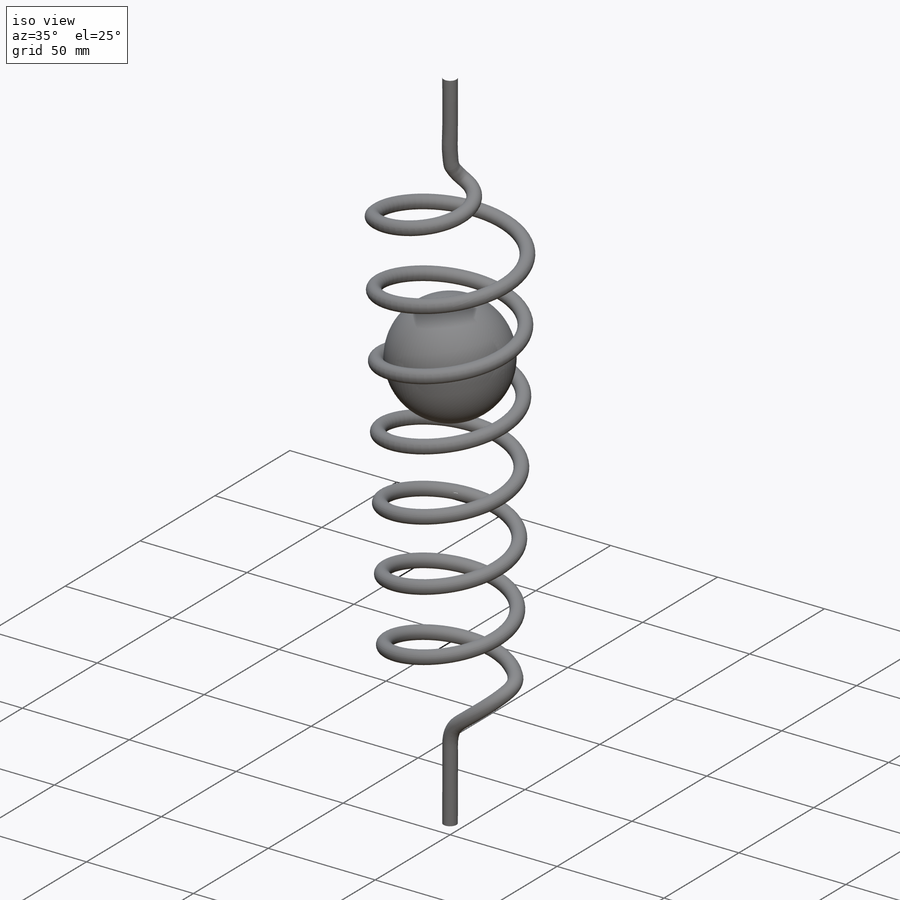
[diagram: iso view]
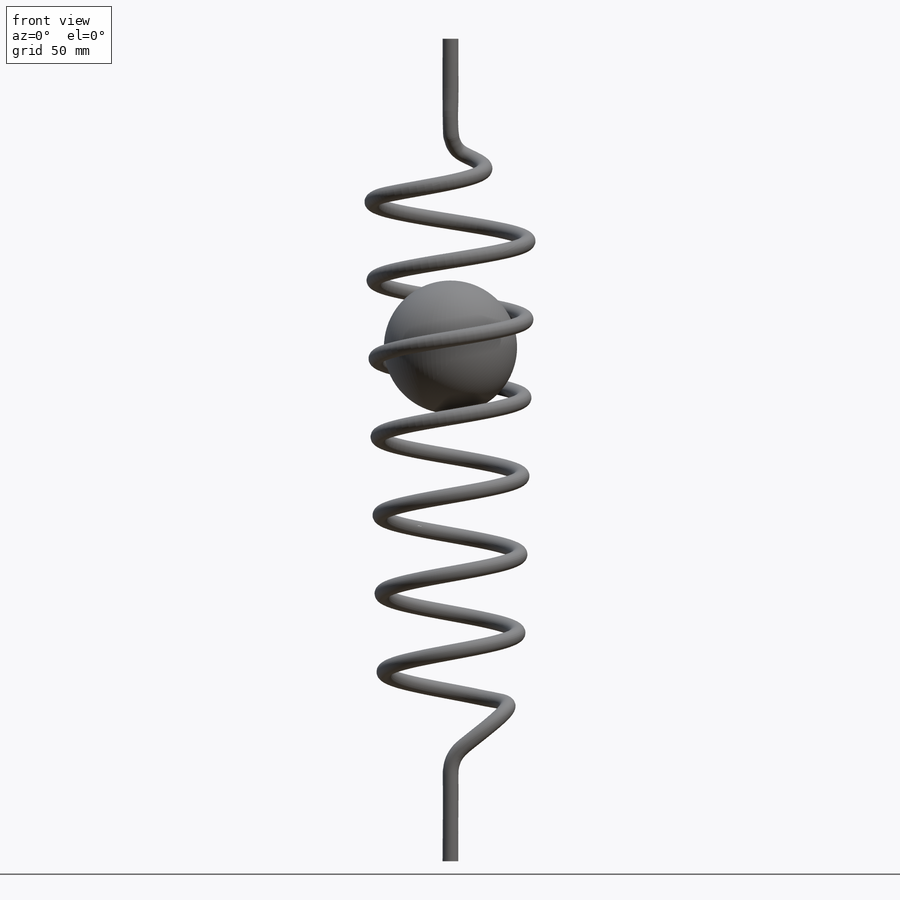
[diagram: front view]
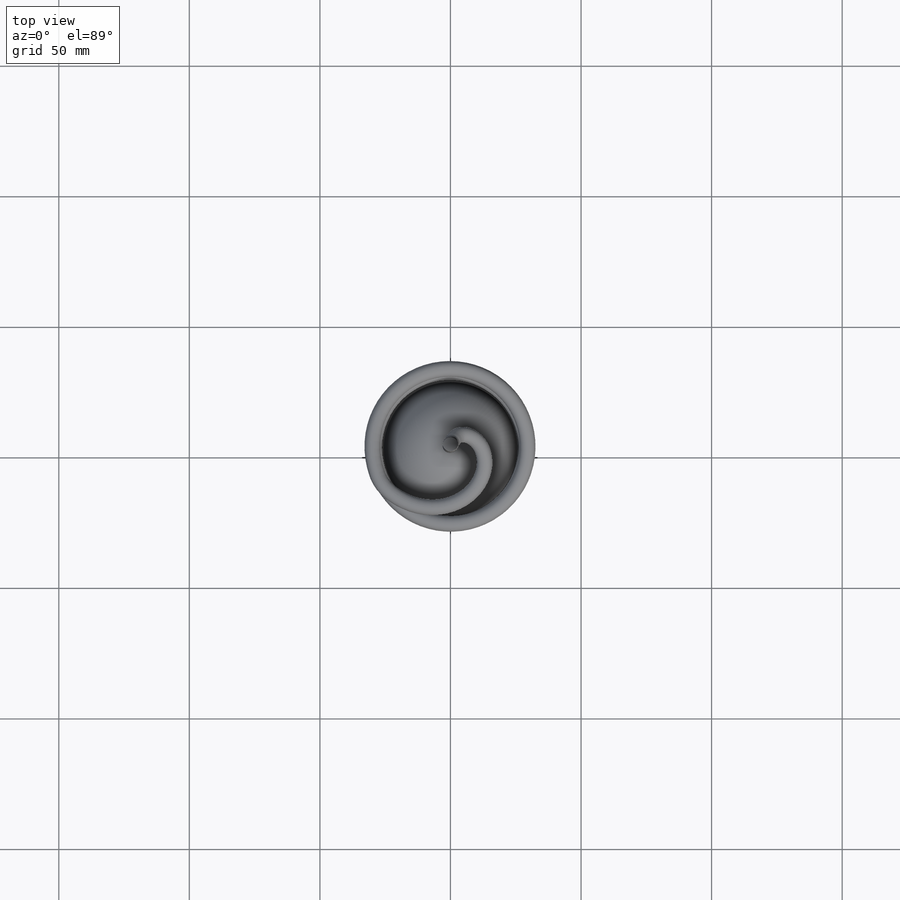
[diagram: top view]
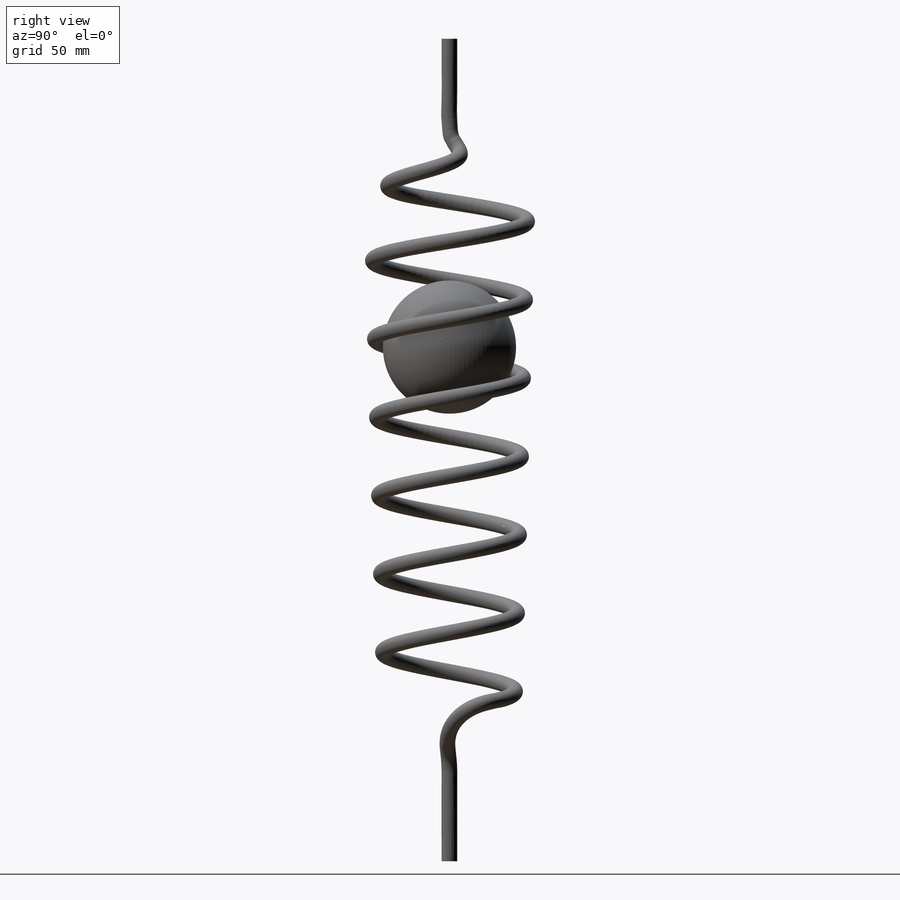
[diagram: right view]
SOLIDWORKS PART (.sldprt)
format: sldprt  version: not decoded by parser v0  size: 2,406,912 bytes
history: native  units: mm
features: sketch x10, plane x7, revolve x3, material x1, helix x1, sweep x1 + 1 further entry (+8 scaffold rows collapsed)
feature tree (32):
  scaffold x8  (default folders/planes/origin — collapsed)
  material  "Material <nicht festgelegt>"
  plane  "Vorderansicht"
  plane  "Draufsicht"
  plane  "Seitenansicht"
  plane  "Ebene1"  Offset=305mm
  plane  "Ebene2"  Offset=10mm
  sketch  "Skizze1"  dims[D1=0.01mm]
  helix  "Spirale/Helix1"  Pitch=30mm
  sketch  "Skizze2"  dims[D1=6.0mm]
  sketch  "3D-Skizze1"  dims[D1=~49.642869mm D2=55.0mm]
  sweep  "Austragung1"
  sketch  "Skizze3"  dims[c1.D1=6.0mm c1.D2=~30.016164mm c1.D3=15.0mm c1.D4=30.0mm c1.D5=~29.615263mm c2.D1=360.0deg]
  sketch  "Skizze4"  dims[D1=51.0mm]
  revolve  "Kugel-nach-Trichter"  Angle=360deg
  sketch  "Skizze9"  dims[D1=2.7mm]
  "außer-Mitte-Orientierung"
  sketch  "3D-Skizze2"  dims[c1.D2=25.0mm c1.D1=50.0mm c2.D2=~48.085954mm c3.D2=~15.904648deg c3.D3=~15.904648deg c4.D3=~48.085954mm c4.D4=~48.085954mm c4.D2=~48.614692mm c5.D2=~13.518659deg c5.D3=~13.518659deg]
  plane  "Ebene3"
  sketch  "Skizze5"
  revolve  "Kugel-nach-Skizze"  Angle=360deg
  sketch  "3D-Skizze3"  dims[D4=~25.601416mm D5=25.0mm D1=~167.75976mm D2=~1.004442mm D3=~1.174028mm]
  plane  "Ebene4"
  sketch  "Skizze8"  dims[D1=25.0mm]
  revolve  "Kugel-nach-Simulation"  Angle=360deg
decode coverage: 13 of 15 modeling features carry decoded parameters; 1 rows unclassified (native names shown)
note: ~ marks probable driven/reference dimensions
note: suppression state not decoded; provenance and decode notes live in map.json
